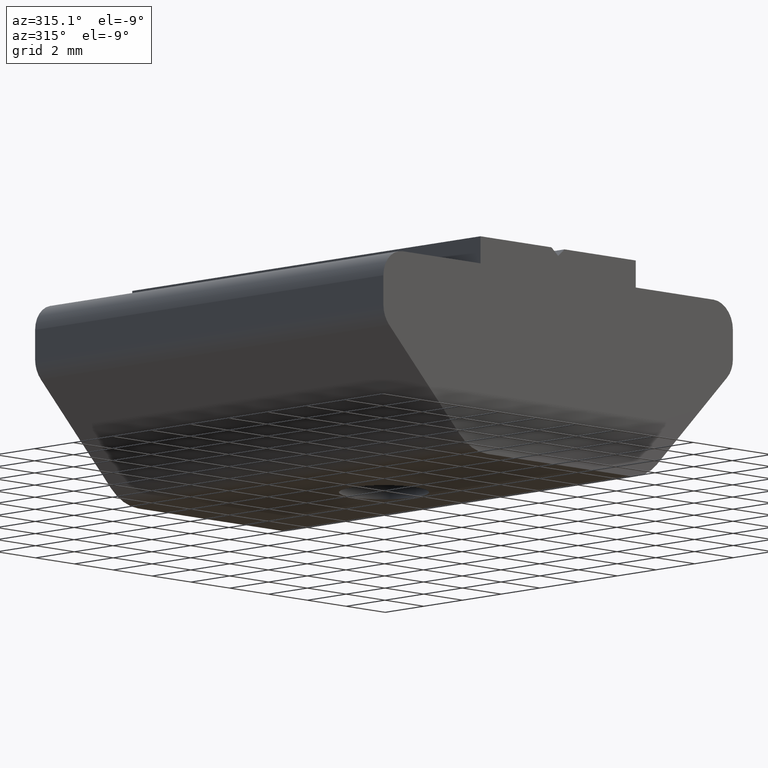
[diagram: clean part render]
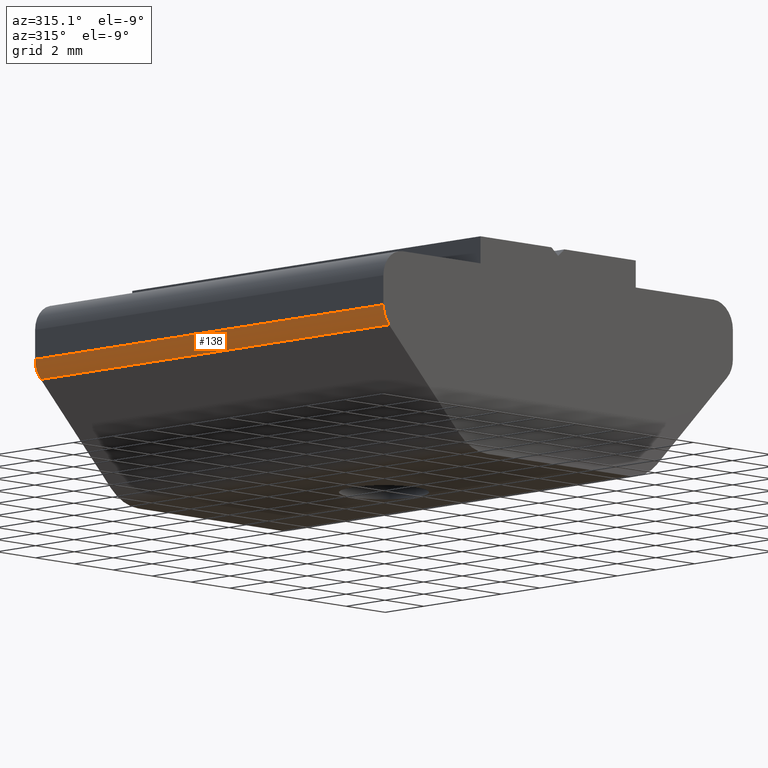
[diagram: same view with one face highlighted and labeled with its STEP entity id]
A machine part, auxiliary view. The second image highlights one B-rep face of the part: STEP entity #138.
In plain terms, the highlighted cylindrical surface (edge-blend (fillet) strip) has radius 1 mm, axis along (0, -1, 0).
Its self-contained STEP definition (entity closure, byte-faithful):
#80=CARTESIAN_POINT('',(-8.999997993984351,9.0,4.914212479044635));
#81=VERTEX_POINT('',#80);
#88=CARTESIAN_POINT('',(-8.999997993984351,-9.0,4.914212479044637));
#89=VERTEX_POINT('',#88);
#90=CARTESIAN_POINT('',(-8.999997993984351,9.0,4.914212479044635));
#91=DIRECTION('',(0.0,-1.0,0.0));
#92=VECTOR('',#91,18.0);
#93=LINE('',#90,#92);
#94=EDGE_CURVE('',#81,#89,#93,.T.);
#106=CARTESIAN_POINT('',(-7.999998228993803,9.0,4.914212476028978));
#107=DIRECTION('',(0.0,-1.0,6.123234E-017));
#108=DIRECTION('',(1.0,0.0,0.0));
#109=AXIS2_PLACEMENT_3D('',#106,#107,#108);
#110=CYLINDRICAL_SURFACE('',#109,0.999999764990546);
#111=CARTESIAN_POINT('',(-8.707104839006661,9.0,4.207105856022280));
#112=VERTEX_POINT('',#111);
#113=CARTESIAN_POINT('',(-7.999998228993803,9.0,4.914212476028978));
#114=DIRECTION('',(0.0,-1.0,6.123234E-017));
#115=DIRECTION('',(1.0,0.0,0.0));
#116=AXIS2_PLACEMENT_3D('',#113,#114,#115);
#117=CIRCLE('',#116,0.999999764990546);
#118=EDGE_CURVE('',#81,#112,#117,.T.);
#119=ORIENTED_EDGE('',*,*,#118,.T.);
#120=CARTESIAN_POINT('',(-8.707104839006661,-9.0,4.207105856022282));
#121=VERTEX_POINT('',#120);
#122=CARTESIAN_POINT('',(-8.707104839006661,9.0,4.207105856022280));
#123=DIRECTION('',(0.0,-1.0,0.0));
#124=VECTOR('',#123,18.0);
#125=LINE('',#122,#124);
#126=EDGE_CURVE('',#112,#121,#125,.T.);
#127=ORIENTED_EDGE('',*,*,#126,.T.);
#128=CARTESIAN_POINT('',(-7.999998228993803,-9.0,4.914212476028980));
#129=DIRECTION('',(0.0,-1.0,6.123234E-017));
#130=DIRECTION('',(1.0,0.0,0.0));
#131=AXIS2_PLACEMENT_3D('',#128,#129,#130);
#132=CIRCLE('',#131,0.999999764990546);
#133=EDGE_CURVE('',#89,#121,#132,.T.);
#134=ORIENTED_EDGE('',*,*,#133,.F.);
#135=ORIENTED_EDGE('',*,*,#94,.F.);
#136=EDGE_LOOP('',(#119,#127,#134,#135));
#137=FACE_OUTER_BOUND('',#136,.T.);
#138=ADVANCED_FACE('',(#137),#110,.T.);